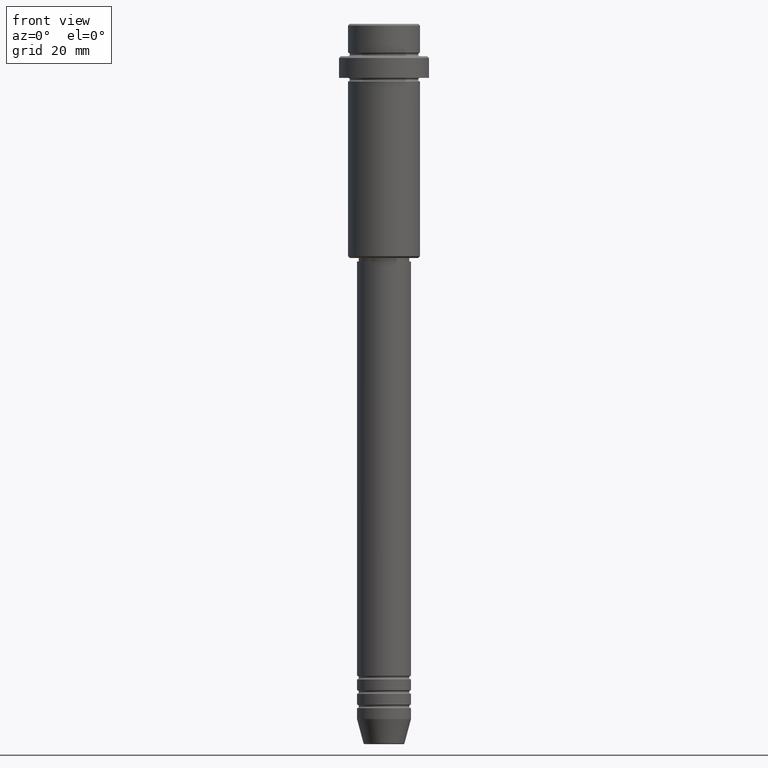
[diagram: clean part render]
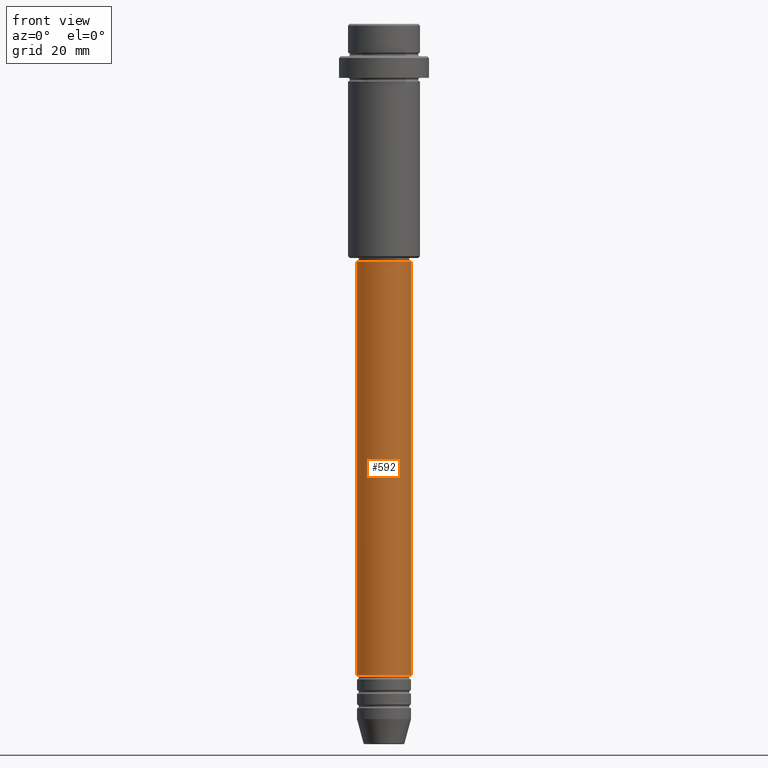
[diagram: same view with one face highlighted and labeled with its STEP entity id]
A machine part, front view. The second image highlights one B-rep face of the part: STEP entity #592.
In plain terms, the highlighted cylindrical surface (edge-blend (fillet) strip) has radius 7.5 mm, axis along (-0, -0, 1).
Its self-contained STEP definition (entity closure, byte-faithful):
#24 = CARTESIAN_POINT ( 'NONE',  ( -7.500000000000000000, 9.184850993605147944E-16, -180.9999999999998863 ) ) ;
#37 = AXIS2_PLACEMENT_3D ( 'NONE', #482, #591, #580 ) ;
#40 = CIRCLE ( 'NONE', #926, 7.500000000000000000 ) ;
#57 = ORIENTED_EDGE ( 'NONE', *, *, #324, .T. ) ;
#77 = EDGE_LOOP ( 'NONE', ( #886, #57, #627, #1371 ) ) ;
#102 = EDGE_CURVE ( 'NONE', #164, #1186, #459, .T. ) ;
#140 = CYLINDRICAL_SURFACE ( 'NONE', #37, 7.500000000000000000 ) ;
#155 = FACE_OUTER_BOUND ( 'NONE', #77, .T. ) ;
#164 = VERTEX_POINT ( 'NONE', #362 ) ;
#324 = EDGE_CURVE ( 'NONE', #997, #164, #1072, .T. ) ;
#327 = EDGE_CURVE ( 'NONE', #997, #1261, #1087, .T. ) ;
#362 = CARTESIAN_POINT ( 'NONE',  ( 7.500000000000000000, 0.000000000000000000, -180.9999999999998863 ) ) ;
#448 = VECTOR ( 'NONE', #1289, 1000.000000000000000 ) ;
#459 = LINE ( 'NONE', #894, #808 ) ;
#482 = CARTESIAN_POINT ( 'NONE',  ( 0.000000000000000000, 0.000000000000000000, 0.000000000000000000 ) ) ;
#545 = CARTESIAN_POINT ( 'NONE',  ( -7.500000000000000000, 9.184850993605147944E-16, 0.000000000000000000 ) ) ;
#580 = DIRECTION ( 'NONE',  ( 1.000000000000000000, 0.000000000000000000, 0.000000000000000000 ) ) ;
#591 = DIRECTION ( 'NONE',  ( -0.000000000000000000, -0.000000000000000000, 1.000000000000000000 ) ) ;
#592 = ADVANCED_FACE ( 'NONE', ( #155 ), #140, .T. ) ;
#627 = ORIENTED_EDGE ( 'NONE', *, *, #102, .T. ) ;
#645 = CARTESIAN_POINT ( 'NONE',  ( -7.500000000000000000, 9.184850993605147944E-16, -66.00000000000000000 ) ) ;
#721 = DIRECTION ( 'NONE',  ( -0.000000000000000000, -0.000000000000000000, 1.000000000000000000 ) ) ;
#808 = VECTOR ( 'NONE', #1012, 1000.000000000000000 ) ;
#814 = CARTESIAN_POINT ( 'NONE',  ( 7.500000000000000000, 0.000000000000000000, -66.00000000000000000 ) ) ;
#872 = DIRECTION ( 'NONE',  ( 1.000000000000000000, 0.000000000000000000, 0.000000000000000000 ) ) ;
#886 = ORIENTED_EDGE ( 'NONE', *, *, #327, .F. ) ;
#894 = CARTESIAN_POINT ( 'NONE',  ( 7.500000000000000000, 0.000000000000000000, 0.000000000000000000 ) ) ;
#926 = AXIS2_PLACEMENT_3D ( 'NONE', #1262, #721, #938 ) ;
#938 = DIRECTION ( 'NONE',  ( 1.000000000000000000, 0.000000000000000000, 0.000000000000000000 ) ) ;
#996 = DIRECTION ( 'NONE',  ( -0.000000000000000000, -0.000000000000000000, 1.000000000000000000 ) ) ;
#997 = VERTEX_POINT ( 'NONE', #24 ) ;
#1012 = DIRECTION ( 'NONE',  ( -0.000000000000000000, -0.000000000000000000, 1.000000000000000000 ) ) ;
#1072 = CIRCLE ( 'NONE', #1343, 7.500000000000000000 ) ;
#1083 = EDGE_CURVE ( 'NONE', #1261, #1186, #40, .T. ) ;
#1087 = LINE ( 'NONE', #545, #448 ) ;
#1152 = CARTESIAN_POINT ( 'NONE',  ( 0.000000000000000000, 0.000000000000000000, -180.9999999999998863 ) ) ;
#1186 = VERTEX_POINT ( 'NONE', #814 ) ;
#1261 = VERTEX_POINT ( 'NONE', #645 ) ;
#1262 = CARTESIAN_POINT ( 'NONE',  ( 0.000000000000000000, 0.000000000000000000, -66.00000000000000000 ) ) ;
#1289 = DIRECTION ( 'NONE',  ( -0.000000000000000000, -0.000000000000000000, 1.000000000000000000 ) ) ;
#1343 = AXIS2_PLACEMENT_3D ( 'NONE', #1152, #996, #872 ) ;
#1371 = ORIENTED_EDGE ( 'NONE', *, *, #1083, .F. ) ;